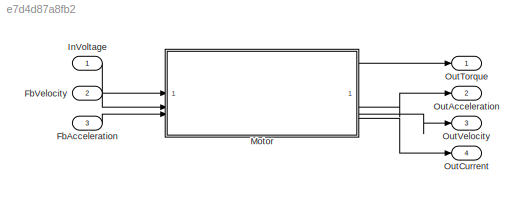
MODEL slx_e7d4d87a8fb2
KIND model
CONFIG AbsTol = auto
CONFIG EnableMultiTasking = off
CONFIG FixedStep = auto
CONFIG MaxStep = auto
CONFIG MinStep = auto
CONFIG RelTol = 1e-3
CONFIG SampleTimeConstraint = Unconstrained
CONFIG SolverName = VariableStepAuto
CONFIG StartTime = 0.0
CONFIG StopTime = 10.0
BLOCK [Inport] FbAcceleration
  Port = 3
BLOCK [Inport] FbVelocity
  Port = 2
BLOCK [Inport] InVoltage
BLOCK [SubSystem] Motor
  ReferencedSubsystem = Motor
  km = 16e-3
  kw = 62.8
  motor_nominal_voltage = 24
  vis_friction_coef_motor = 0.0025
BLOCK [Outport] OutAcceleration
  Port = 2
BLOCK [Outport] OutCurrent
  Port = 4
BLOCK [Outport] OutTorque
BLOCK [Outport] OutVelocity
  Port = 3
LINE FbAcceleration:1 -> Motor:3
LINE FbVelocity:1 -> Motor:2
LINE InVoltage:1 -> Motor:1
LINE Motor:1 -> OutTorque:1
LINE Motor:2 -> OutAcceleration:1
LINE Motor:3 -> OutVelocity:1
LINE Motor:4 -> OutCurrent:1
